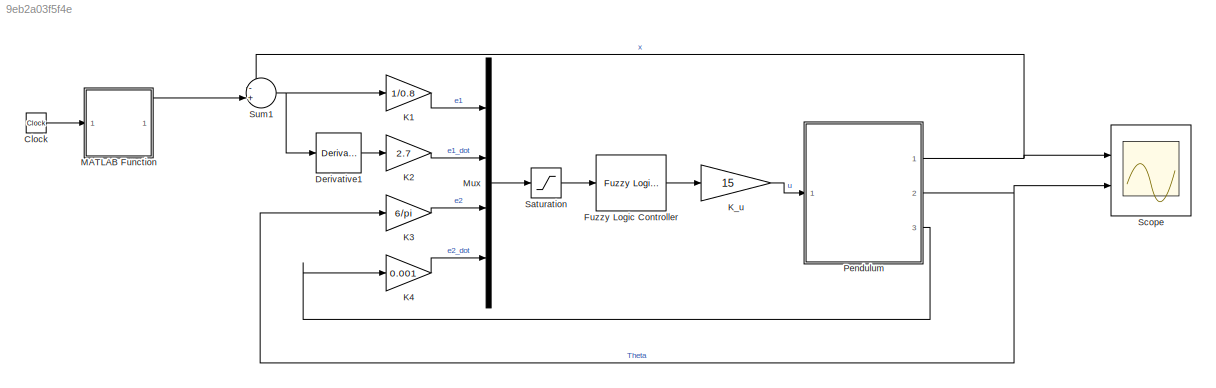
MODEL slx_9eb2a03f5f4e
KIND model
CONFIG AbsTol = auto
CONFIG EnableMultiTasking = off
CONFIG FixedStep = 0.1
CONFIG MaxStep = auto
CONFIG MinStep = auto
CONFIG RelTol = 1e-3
CONFIG SampleTimeConstraint = Unconstrained
CONFIG Solver = ode4
CONFIG SolverName = ode4
CONFIG StartTime = 0.0
CONFIG StopTime = 60
BLOCK [Clock] Clock
  Decimation = 60
BLOCK [Derivative] Derivative1
BLOCK [Reference] Fuzzy Logic Controller  REF=fuzblock/Fuzzy Logic   (lib defined in mdl_858b3b3e7478)
Controller
  Ports = [1, 1]
  SourceBlock = fuzblock/Fuzzy Logic \nController
  SourceProductBaseCode = FL
  SourceProductName = Fuzzy Logic Toolbox
  SourceType = Fuzzy Inference System
BLOCK [Gain] K1
  Gain = 1/0.8
  OutDataTypeStr = Inherit: Inherit via internal rule
  ParamDataTypeStr = Inherit: Inherit via internal rule
  SaturateOnIntegerOverflow = off
BLOCK [Gain] K2
  Gain = 2.7
  OutDataTypeStr = Inherit: Inherit via internal rule
  ParamDataTypeStr = Inherit: Inherit via internal rule
  SaturateOnIntegerOverflow = off
BLOCK [Gain] K3
  Gain = 6/pi
  OutDataTypeStr = Inherit: Inherit via internal rule
  ParamDataTypeStr = Inherit: Inherit via internal rule
  SaturateOnIntegerOverflow = off
BLOCK [Gain] K4
  Gain = 0.001
  OutDataTypeStr = Inherit: Inherit via internal rule
  ParamDataTypeStr = Inherit: Inherit via internal rule
  SaturateOnIntegerOverflow = off
BLOCK [Gain] K_u
  Gain = 15
  OutDataTypeStr = Inherit: Inherit via internal rule
  ParamDataTypeStr = Inherit: Inherit via internal rule
  SaturateOnIntegerOverflow = off
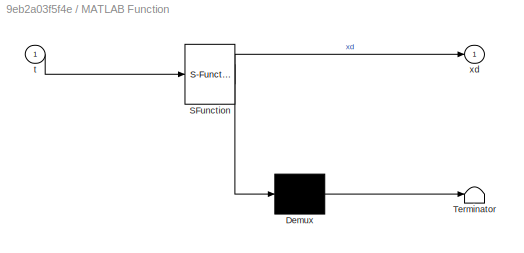
BLOCK [SubSystem] MATLAB Function
  ErrorFcn = Stateflow.Translate.translate
  PermitHierarchicalResolution = ExplicitOnly
  Ports = [1, 1]
  RequestExecContextInheritance = off
  SFBlockType = MATLAB Function
  TreatAsAtomicUnit = on
  Variant = off
BLOCK [Demux] MATLAB Function/ Demux 
  Outputs = 1
  Ports = [1, 1]
BLOCK [S-Function] MATLAB Function/ SFunction 
  EnableBusSupport = on
  FunctionName = sf_sfun
  PortCounts = [1 2]
  Ports = [1, 2]
  SFcnIsStateOwnerBlock = off
  SFunctionDeploymentMode = off
  Tag = Stateflow S-Function setpoint_xd 2
BLOCK [Terminator] MATLAB Function/ Terminator 
BLOCK [Inport] MATLAB Function/t
  IconDisplay = Port number
BLOCK [Outport] MATLAB Function/xd
  IconDisplay = Port number
BLOCK [Mux] Mux
  DisplayOption = bar
  Ports = [4, 1]
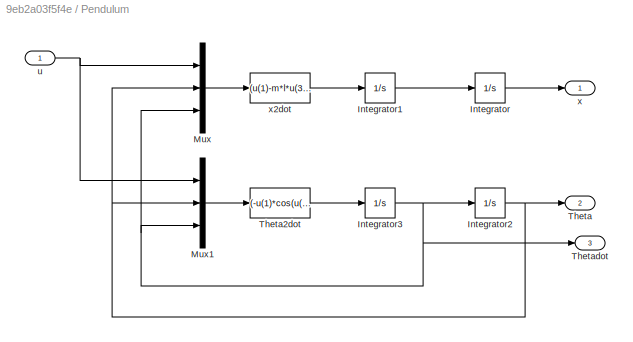
BLOCK [SubSystem] Pendulum
  Ports = [1, 3]
  RequestExecContextInheritance = off
  Variant = off
BLOCK [Integrator] Pendulum/Integrator
  InitialCondition = x0
  Ports = [1, 1]
BLOCK [Integrator] Pendulum/Integrator1
  InitialCondition = xdot0
  Ports = [1, 1]
BLOCK [Integrator] Pendulum/Integrator2
  InitialCondition = Theta0
  Ports = [1, 1]
BLOCK [Integrator] Pendulum/Integrator3
  InitialCondition = Thetadot0
  Ports = [1, 1]
BLOCK [Mux] Pendulum/Mux
  DisplayOption = bar
  Inputs = 3
  Ports = [3, 1]
BLOCK [Mux] Pendulum/Mux1
  DisplayOption = bar
  Inputs = 3
  Ports = [3, 1]
BLOCK [Outport] Pendulum/Theta
  IconDisplay = Port number
  Port = 2
BLOCK [Fcn] Pendulum/Theta2dot
  Expr = (-u(1)*cos(u(2))+m*g*u(3)*u(3)*sin(u(2))*cos(u(2))+(H+m)*(g*sin(u(2)))/(m*l*cos(u(2))*cos(u(2))-(H+m)*l))
BLOCK [Outport] Pendulum/Thetadot
  IconDisplay = Port number
  Port = 3
BLOCK [Inport] Pendulum/u
  IconDisplay = Port number
BLOCK [Outport] Pendulum/x
  IconDisplay = Port number
BLOCK [Fcn] Pendulum/x2dot
  Expr = (u(1)-m*l*u(3)*u(3)*sin(u(2))-m*g*sin(u(2))*cos(u(2)))/((H+m)-m*cos(u(2))*cos(u(2)))
BLOCK [Saturate] Saturation
  InputPortMap = u0
  LowerLimit = -1
  Ports = [1, 1]
  UpperLimit = 1
BLOCK [Scope] Scope
  NumInputPorts = 2
  Ports = [2]
  ScopeSpecificationString = Simulink.scopes.TimeScopeBlockCfg('CurrentConfiguration', extmgr.ConfigurationSet(extmgr.Configuration('Core','General UI',true,'FigureColor',[1 1 1]),extmgr.Configuration('Core','Source UI',true),extmgr.Configuration('Sources','WiredSimulink',true),extmgr.Configuration('Visuals','Time Domain',true,'SerializedDisplays',{struct('MinYLimReal','-0.00092','MaxYLimReal','0.0001','YLabelReal','','MinYLi...<+3848ch>
BLOCK [Sum] Sum1
  IconShape = round
  InputSameDT = off
  Inputs = -+
  OutDataTypeStr = Inherit: Inherit via internal rule
  Ports = [2, 1]
  SaturateOnIntegerOverflow = off
LINE Clock:1 -> MATLAB Function:1
LINE Derivative1:1 -> K2:1
LINE Fuzzy Logic Controller:1 -> K_u:1
LINE K1:1 -> Mux:1
LINE K2:1 -> Mux:2
LINE K3:1 -> Mux:3
LINE K4:1 -> Mux:4
LINE K_u:1 -> Pendulum:1
LINE MATLAB Function:1 -> Sum1:2
LINE Mux:1 -> Saturation:1
LINE Pendulum/Integrator1:1 -> Pendulum/Integrator:1
NET Pendulum/Integrator2:1 -> Pendulum/Mux1:2, Pendulum/Mux:2, Pendulum/Theta:1
NET Pendulum/Integrator3:1 -> Pendulum/Integrator2:1, Pendulum/Mux1:3, Pendulum/Mux:3, Pendulum/Thetadot:1
LINE Pendulum/Integrator:1 -> Pendulum/x:1
LINE Pendulum/Mux1:1 -> Pendulum/Theta2dot:1
LINE Pendulum/Mux:1 -> Pendulum/x2dot:1
LINE Pendulum/Theta2dot:1 -> Pendulum/Integrator3:1
NET Pendulum/u:1 -> Pendulum/Mux1:1, Pendulum/Mux:1
LINE Pendulum/x2dot:1 -> Pendulum/Integrator1:1
NET Pendulum:1 -> Scope:1, Sum1:1
NET Pendulum:2 -> K3:1, Scope:2
LINE Pendulum:3 -> K4:1
LINE Saturation:1 -> Fuzzy Logic Controller:1
NET Sum1:1 -> Derivative1:1, K1:1
note: NET lines group one-source signal fan-out (src -> all destinations, sorted); 1:1 wires keep LINE
CHART MATLAB Function states=1 transitions=1
  STATE_LABEL 'eML_blk_kernel()'
  STATE_LABEL 'SCRIPT:\nfunction xd = fcn(t)\nif (0<=t) && (t<10)  \n    xd = 0.45;\nelseif (10<=t) &&(t<20) \n    xd = 0.2;\nelseif (20<=t) &&(t<30)  \n    xd = 0.8;\nelseif (30<=t) &&(t<40)  \n    xd = 0.55;\nelseif (40<=t) &&(t<50)  \n    xd = 0.1;\nelseif (50<=t) &&(t<60)  \n    xd = 0.65;\nelse xd = 0;\nend\nend\n\n'
